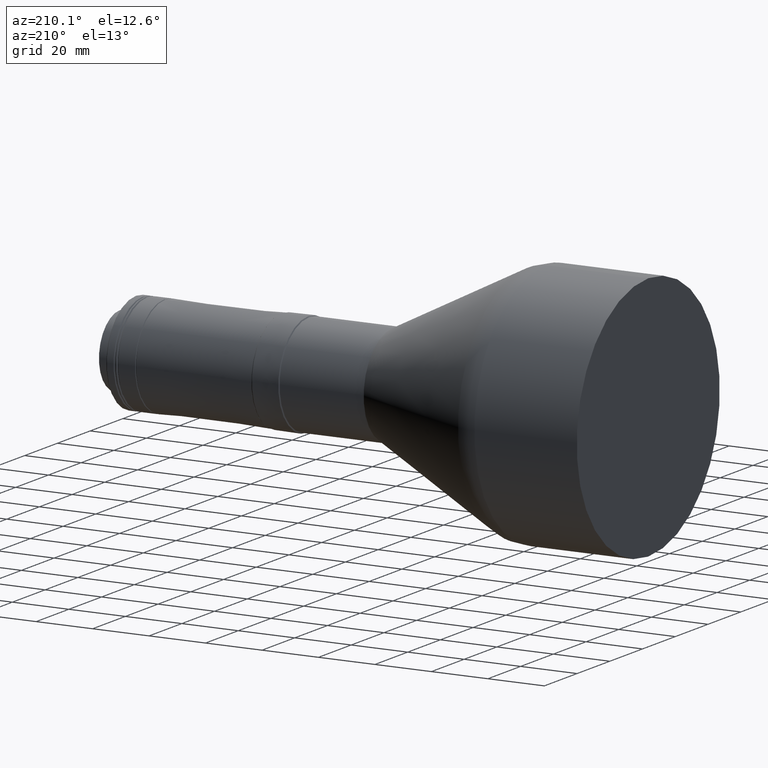
[diagram: clean part render]
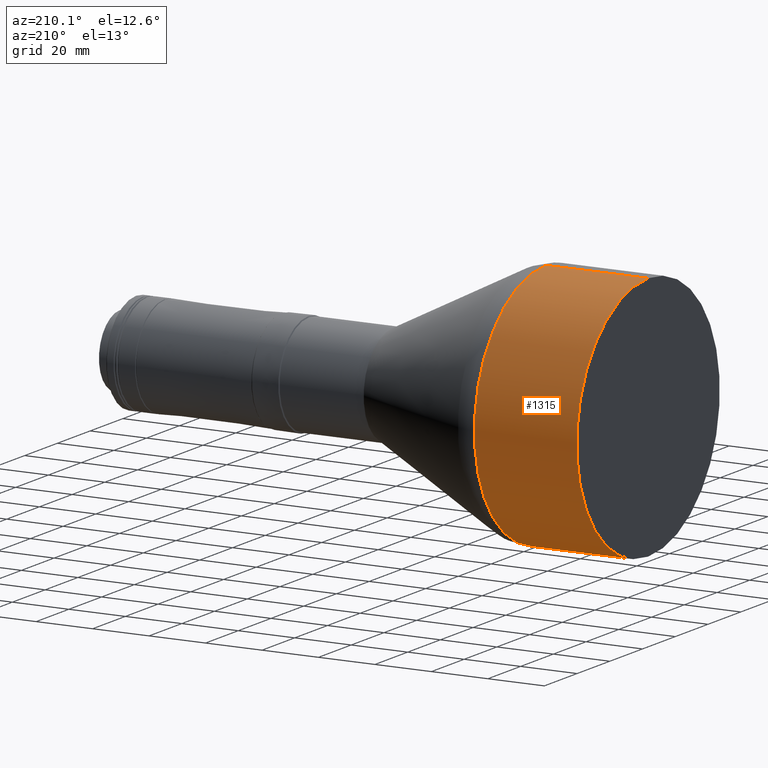
[diagram: same view with one face highlighted and labeled with its STEP entity id]
A machine part, auxiliary view. The second image highlights one B-rep face of the part: STEP entity #1315.
In plain terms, the highlighted cylindrical surface (partial cylindrical patch) has radius 43.7 mm, axis along (-1, -0, -0).
Its self-contained STEP definition (entity closure, byte-faithful):
#7 = CARTESIAN_POINT ( 'NONE',  ( -24.05529752010304600, 0.0000000000000000000, -120.4110000000999600 ) ) ;
#72 = VERTEX_POINT ( 'NONE', #7 ) ;
#88 = ORIENTED_EDGE ( 'NONE', *, *, #658, .F. ) ;
#138 = DIRECTION ( 'NONE',  ( -1.000000000000000000, -0.0000000000000000000, -0.0000000000000000000 ) ) ;
#152 = DIRECTION ( 'NONE',  ( 0.0000000000000000000, 0.0000000000000000000, 1.000000000000000000 ) ) ;
#165 = DIRECTION ( 'NONE',  ( -1.000000000000000000, -0.0000000000000000000, -0.0000000000000000000 ) ) ;
#239 = DIRECTION ( 'NONE',  ( 0.0000000000000000000, 0.0000000000000000000, 1.000000000000000000 ) ) ;
#297 = VERTEX_POINT ( 'NONE', #1690 ) ;
#313 = CARTESIAN_POINT ( 'NONE',  ( 12.17900414224192000, 0.0000000000000000000, -164.1109999999999900 ) ) ;
#352 = DIRECTION ( 'NONE',  ( 0.0000000000000000000, 0.0000000000000000000, 1.000000000000000000 ) ) ;
#388 = DIRECTION ( 'NONE',  ( -1.000000000000000000, -0.0000000000000000000, -0.0000000000000000000 ) ) ;
#460 = CIRCLE ( 'NONE', #1450, 43.69999999990001500 ) ;
#467 = EDGE_CURVE ( 'NONE', #297, #1047, #1660, .T. ) ;
#475 = ORIENTED_EDGE ( 'NONE', *, *, #1502, .F. ) ;
#495 = CARTESIAN_POINT ( 'NONE',  ( -41.80689966640019200, 5.351706512264300000E-015, -207.8109999999213100 ) ) ;
#549 = EDGE_LOOP ( 'NONE', ( #2009, #1080, #475, #88 ) ) ;
#609 = AXIS2_PLACEMENT_3D ( 'NONE', #1638, #388, #352 ) ;
#638 = AXIS2_PLACEMENT_3D ( 'NONE', #313, #2147, #152 ) ;
#658 = EDGE_CURVE ( 'NONE', #297, #72, #2055, .T. ) ;
#724 = LINE ( 'NONE', #495, #1154 ) ;
#1047 = VERTEX_POINT ( 'NONE', #1700 ) ;
#1080 = ORIENTED_EDGE ( 'NONE', *, *, #1766, .T. ) ;
#1141 = DIRECTION ( 'NONE',  ( -1.000000000000000000, -0.0000000000000000000, -0.0000000000000000000 ) ) ;
#1154 = VECTOR ( 'NONE', #138, 1000.000000000000000 ) ;
#1315 = ADVANCED_FACE ( 'NONE', ( #1900 ), #1808, .T. ) ;
#1450 = AXIS2_PLACEMENT_3D ( 'NONE', #2227, #1141, #239 ) ;
#1493 = CARTESIAN_POINT ( 'NONE',  ( -24.05529752010304600, 5.351706512262995200E-015, -207.8109999998999900 ) ) ;
#1502 = EDGE_CURVE ( 'NONE', #72, #1948, #460, .T. ) ;
#1631 = CARTESIAN_POINT ( 'NONE',  ( -41.80689966640019200, 0.0000000000000000000, -120.4110000000786400 ) ) ;
#1638 = CARTESIAN_POINT ( 'NONE',  ( -41.80689966640019200, 0.0000000000000000000, -164.1109999999999900 ) ) ;
#1660 = CIRCLE ( 'NONE', #638, 43.69999999994266200 ) ;
#1690 = CARTESIAN_POINT ( 'NONE',  ( 12.17900414224192000, 0.0000000000000000000, -120.4110000000573000 ) ) ;
#1700 = CARTESIAN_POINT ( 'NONE',  ( 12.17900414224192000, 5.351706512266910300E-015, -207.8109999999426200 ) ) ;
#1766 = EDGE_CURVE ( 'NONE', #1047, #1948, #724, .T. ) ;
#1808 = CYLINDRICAL_SURFACE ( 'NONE', #609, 43.69999999992133200 ) ;
#1900 = FACE_OUTER_BOUND ( 'NONE', #549, .T. ) ;
#1948 = VERTEX_POINT ( 'NONE', #1493 ) ;
#1988 = VECTOR ( 'NONE', #165, 1000.000000000000000 ) ;
#2009 = ORIENTED_EDGE ( 'NONE', *, *, #467, .T. ) ;
#2055 = LINE ( 'NONE', #1631, #1988 ) ;
#2147 = DIRECTION ( 'NONE',  ( -1.000000000000000000, -0.0000000000000000000, -0.0000000000000000000 ) ) ;
#2227 = CARTESIAN_POINT ( 'NONE',  ( -24.05529752010304600, 0.0000000000000000000, -164.1109999999999900 ) ) ;